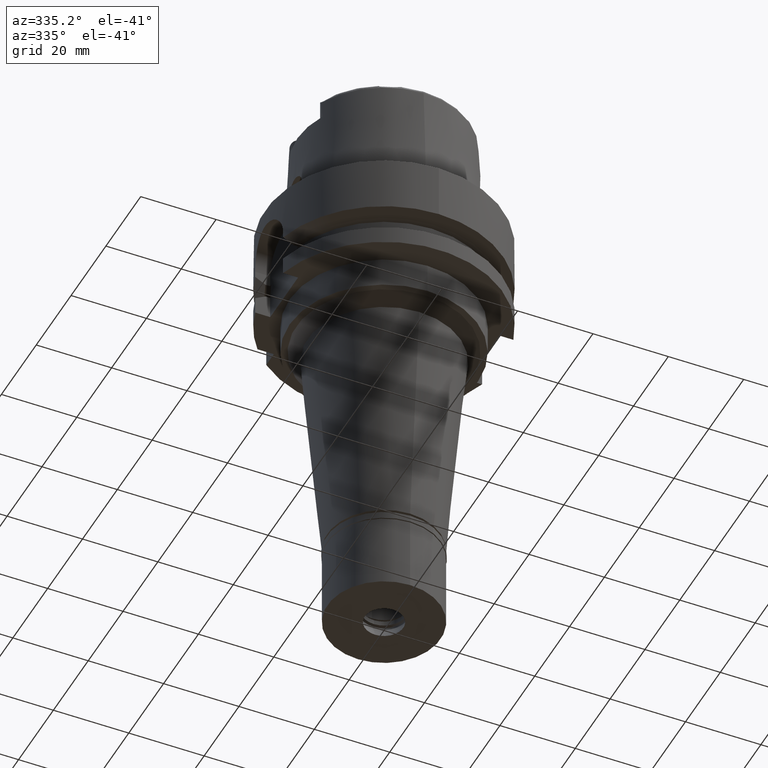
[diagram: clean part render]
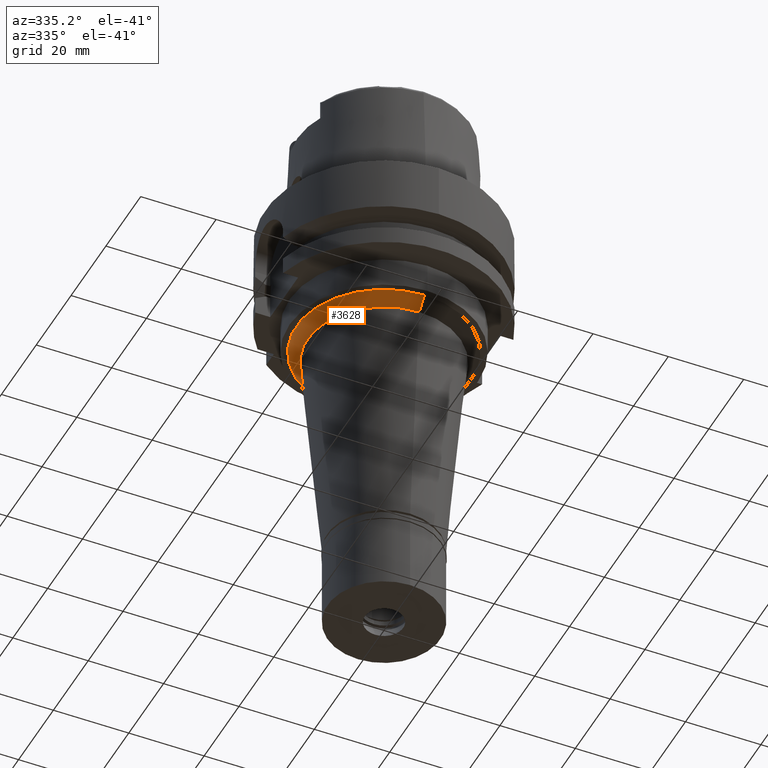
[diagram: same view with one face highlighted and labeled with its STEP entity id]
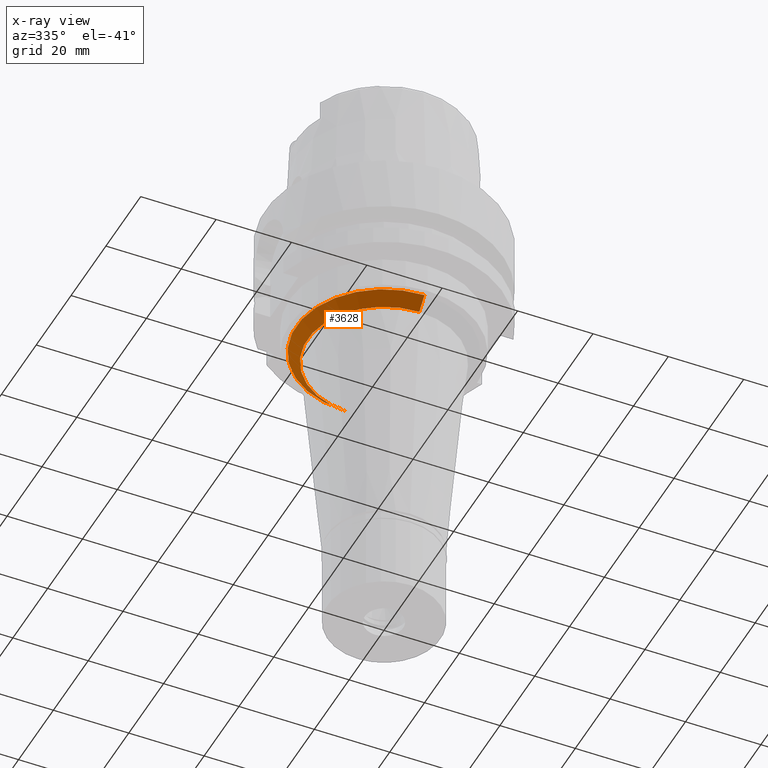
[diagram: x-ray of the same camera — body ghosted, the highlighted face saturated]
A machine part, auxiliary view. The second image highlights one B-rep face of the part: STEP entity #3628.
The next image is the same camera in x-ray: the body ghosted, the highlighted face saturated — about 3% of this face is hidden behind the body in this view.
In plain terms, the highlighted conical surface has half-angle 45 deg.
Its self-contained STEP definition (entity closure, byte-faithful):
#38 = EDGE_CURVE ( 'NONE', #4237, #4432, #5025, .T. ) ;
#135 = CARTESIAN_POINT ( 'NONE',  ( 0.0000000000000000000, 23.26681754425999671, -34.00000000000000000 ) ) ;
#497 = CONICAL_SURFACE ( 'NONE', #1849, 21.76681754426000026, 0.7853981633972997312 ) ;
#683 = EDGE_CURVE ( 'NONE', #4237, #4666, #4268, .T. ) ;
#848 = AXIS2_PLACEMENT_3D ( 'NONE', #2338, #3596, #3504 ) ;
#866 = VECTOR ( 'NONE', #1981, 1000.000000000000114 ) ;
#1243 = DIRECTION ( 'NONE',  ( 0.0000000000000000000, 1.000000000000000000, 0.0000000000000000000 ) ) ;
#1274 = ORIENTED_EDGE ( 'NONE', *, *, #5416, .F. ) ;
#1395 = CARTESIAN_POINT ( 'NONE',  ( 0.0000000000000000000, -23.26681754425999671, -34.00000000000000000 ) ) ;
#1776 = EDGE_LOOP ( 'NONE', ( #1274, #3923, #5273, #3977 ) ) ;
#1849 = AXIS2_PLACEMENT_3D ( 'NONE', #4966, #4587, #1243 ) ;
#1951 = CARTESIAN_POINT ( 'NONE',  ( 0.0000000000000000000, -20.26681754425999671, -37.00000000000000000 ) ) ;
#1961 = VECTOR ( 'NONE', #3846, 1000.000000000000114 ) ;
#1981 = DIRECTION ( 'NONE',  ( 0.0000000000000000000, -0.7071067811864976127, -0.7071067811865975328 ) ) ;
#2010 = CIRCLE ( 'NONE', #848, 20.26681754425999671 ) ;
#2130 = CARTESIAN_POINT ( 'NONE',  ( 0.0000000000000000000, 0.0000000000000000000, -34.00000000000000000 ) ) ;
#2169 = CARTESIAN_POINT ( 'NONE',  ( 0.0000000000000000000, -23.26681754425999671, -34.00000000000000000 ) ) ;
#2338 = CARTESIAN_POINT ( 'NONE',  ( 0.0000000000000000000, 0.0000000000000000000, -37.00000000000000000 ) ) ;
#2355 = LINE ( 'NONE', #5350, #866 ) ;
#2628 = CARTESIAN_POINT ( 'NONE',  ( 0.0000000000000000000, 20.26681754425999671, -37.00000000000000000 ) ) ;
#2918 = DIRECTION ( 'NONE',  ( 0.0000000000000000000, 0.0000000000000000000, -1.000000000000000000 ) ) ;
#3197 = FACE_OUTER_BOUND ( 'NONE', #1776, .T. ) ;
#3504 = DIRECTION ( 'NONE',  ( 0.0000000000000000000, -1.000000000000000000, 0.0000000000000000000 ) ) ;
#3596 = DIRECTION ( 'NONE',  ( 0.0000000000000000000, 0.0000000000000000000, -1.000000000000000000 ) ) ;
#3628 = ADVANCED_FACE ( 'NONE', ( #3197 ), #497, .T. ) ;
#3846 = DIRECTION ( 'NONE',  ( 0.0000000000000000000, 0.7071067811864976127, -0.7071067811865975328 ) ) ;
#3923 = ORIENTED_EDGE ( 'NONE', *, *, #683, .F. ) ;
#3977 = ORIENTED_EDGE ( 'NONE', *, *, #4698, .T. ) ;
#4148 = DIRECTION ( 'NONE',  ( 0.0000000000000000000, -1.000000000000000000, 0.0000000000000000000 ) ) ;
#4237 = VERTEX_POINT ( 'NONE', #1395 ) ;
#4268 = LINE ( 'NONE', #2169, #1961 ) ;
#4308 = VERTEX_POINT ( 'NONE', #2628 ) ;
#4432 = VERTEX_POINT ( 'NONE', #135 ) ;
#4587 = DIRECTION ( 'NONE',  ( 0.0000000000000000000, 0.0000000000000000000, 1.000000000000000000 ) ) ;
#4666 = VERTEX_POINT ( 'NONE', #1951 ) ;
#4698 = EDGE_CURVE ( 'NONE', #4432, #4308, #2355, .T. ) ;
#4966 = CARTESIAN_POINT ( 'NONE',  ( 0.0000000000000000000, 0.0000000000000000000, -35.50000000000000000 ) ) ;
#5025 = CIRCLE ( 'NONE', #5193, 23.26681754425999671 ) ;
#5193 = AXIS2_PLACEMENT_3D ( 'NONE', #2130, #2918, #4148 ) ;
#5273 = ORIENTED_EDGE ( 'NONE', *, *, #38, .T. ) ;
#5350 = CARTESIAN_POINT ( 'NONE',  ( 0.0000000000000000000, 23.26681754425999671, -34.00000000000000000 ) ) ;
#5416 = EDGE_CURVE ( 'NONE', #4666, #4308, #2010, .T. ) ;